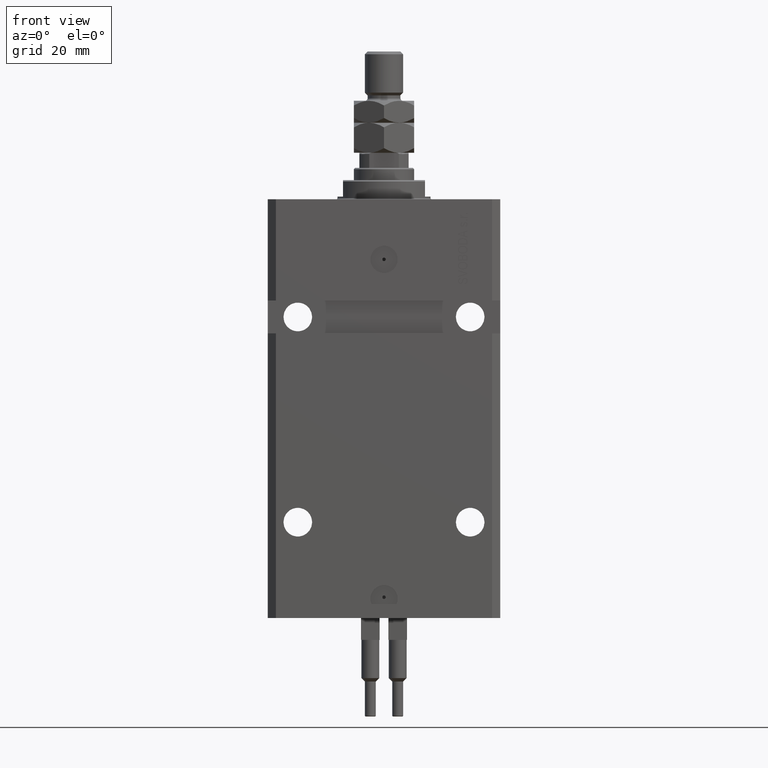
[diagram: clean part render]
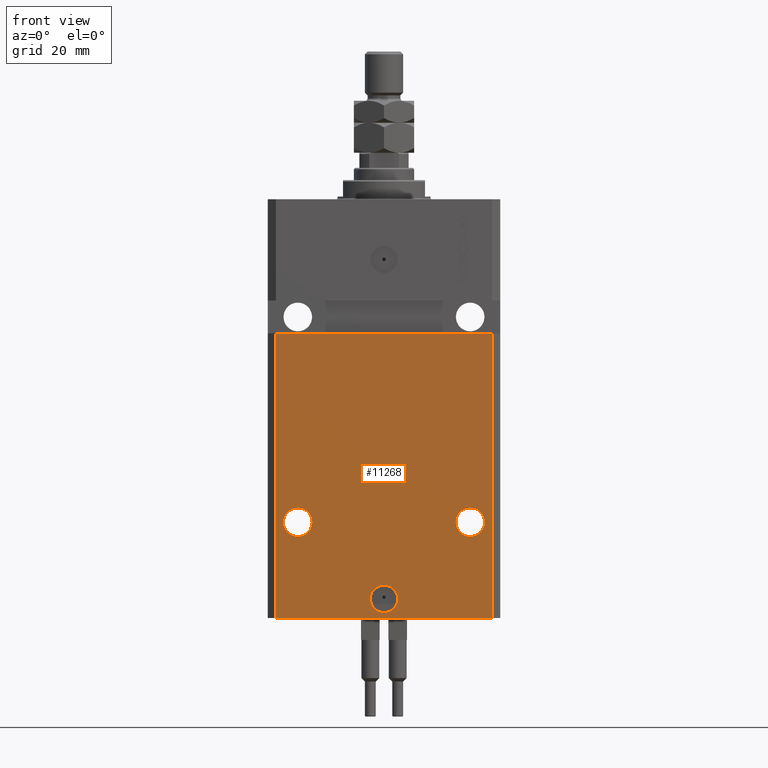
[diagram: same view with one face highlighted and labeled with its STEP entity id]
A machine part, front view. The second image highlights one B-rep face of the part: STEP entity #11268.
In plain terms, the highlighted planar face has unit normal (0, -1, 0).
Its self-contained STEP definition (entity closure, byte-faithful):
#277 = AXIS2_PLACEMENT_3D ( 'NONE', #7714, #47467, #39720 ) ;
#502 = EDGE_CURVE ( 'NONE', #27278, #9931, #25918, .T. ) ;
#1090 = DIRECTION ( 'NONE',  ( 0.000000000000000000, -0.000000000000000000, -1.000000000000000000 ) ) ;
#1821 = EDGE_LOOP ( 'NONE', ( #11480, #30731 ) ) ;
#2847 = AXIS2_PLACEMENT_3D ( 'NONE', #43783, #46654, #3786 ) ;
#3786 = DIRECTION ( 'NONE',  ( 1.000000000000000000, 0.000000000000000000, 0.000000000000000000 ) ) ;
#3959 = FACE_OUTER_BOUND ( 'NONE', #5449, .T. ) ;
#4210 = FACE_BOUND ( 'NONE', #30906, .T. ) ;
#4339 = DIRECTION ( 'NONE',  ( 1.000000000000000000, 0.000000000000000000, 0.000000000000000000 ) ) ;
#4598 = CARTESIAN_POINT ( 'NONE',  ( 31.50000000000001421, -31.49999999999999289, -118.0000000000000000 ) ) ;
#4717 = PLANE ( 'NONE',  #22229 ) ;
#5248 = VECTOR ( 'NONE', #42848, 1000.000000000000000 ) ;
#5449 = EDGE_LOOP ( 'NONE', ( #48148, #45606, #25370, #23076 ) ) ;
#6507 = CARTESIAN_POINT ( 'NONE',  ( -39.50000000000000000, -31.50000000000000711, -48.99999999999999289 ) ) ;
#7212 = EDGE_CURVE ( 'NONE', #35323, #45202, #26032, .T. ) ;
#7714 = CARTESIAN_POINT ( 'NONE',  ( 0.000000000000000000, -31.50000000000000000, -146.0000000000000000 ) ) ;
#7910 = VERTEX_POINT ( 'NONE', #39578 ) ;
#8249 = DIRECTION ( 'NONE',  ( 1.000000000000000000, 0.000000000000000000, 0.000000000000000000 ) ) ;
#8295 = CARTESIAN_POINT ( 'NONE',  ( -39.50000000000000711, -31.50000000000000000, -153.0000000000000000 ) ) ;
#9904 = CIRCLE ( 'NONE', #27226, 5.249999999999997335 ) ;
#9931 = VERTEX_POINT ( 'NONE', #21014 ) ;
#11268 = ADVANCED_FACE ( 'NONE', ( #20712, #4210, #11964, #3959 ), #4717, .T. ) ;
#11480 = ORIENTED_EDGE ( 'NONE', *, *, #39211, .F. ) ;
#11964 = FACE_BOUND ( 'NONE', #1821, .T. ) ;
#12707 = CIRCLE ( 'NONE', #2847, 5.249999999999997335 ) ;
#13675 = DIRECTION ( 'NONE',  ( 0.000000000000000000, 0.000000000000000000, 1.000000000000000000 ) ) ;
#13724 = CARTESIAN_POINT ( 'NONE',  ( 39.50000000000000711, -31.50000000000000000, -153.0000000000000000 ) ) ;
#14074 = CARTESIAN_POINT ( 'NONE',  ( -5.000000000000006217, -31.50000000000000000, -146.0000000000000000 ) ) ;
#14799 = LINE ( 'NONE', #34400, #19306 ) ;
#15838 = CARTESIAN_POINT ( 'NONE',  ( -39.50000000000000711, -31.50000000000000000, -153.0000000000000000 ) ) ;
#17536 = LINE ( 'NONE', #45152, #21274 ) ;
#19220 = VERTEX_POINT ( 'NONE', #48652 ) ;
#19306 = VECTOR ( 'NONE', #37780, 1000.000000000000000 ) ;
#20712 = FACE_BOUND ( 'NONE', #21586, .T. ) ;
#21014 = CARTESIAN_POINT ( 'NONE',  ( 5.000000000000006217, -31.50000000000000000, -146.0000000000000000 ) ) ;
#21101 = ORIENTED_EDGE ( 'NONE', *, *, #23387, .F. ) ;
#21274 = VECTOR ( 'NONE', #13675, 1000.000000000000000 ) ;
#21586 = EDGE_LOOP ( 'NONE', ( #36480, #27911 ) ) ;
#21975 = EDGE_CURVE ( 'NONE', #40999, #27099, #22725, .T. ) ;
#22229 = AXIS2_PLACEMENT_3D ( 'NONE', #15838, #32328, #1090 ) ;
#22542 = CIRCLE ( 'NONE', #277, 5.000000000000006217 ) ;
#22725 = LINE ( 'NONE', #38482, #5248 ) ;
#23076 = ORIENTED_EDGE ( 'NONE', *, *, #21975, .T. ) ;
#23387 = EDGE_CURVE ( 'NONE', #19220, #50556, #12707, .T. ) ;
#23894 = DIRECTION ( 'NONE',  ( 1.176083712526788232E-16, -1.000000000000000000, 0.000000000000000000 ) ) ;
#24302 = AXIS2_PLACEMENT_3D ( 'NONE', #31491, #47750, #8249 ) ;
#25370 = ORIENTED_EDGE ( 'NONE', *, *, #40875, .T. ) ;
#25918 = CIRCLE ( 'NONE', #24302, 5.000000000000006217 ) ;
#26032 = CIRCLE ( 'NONE', #28496, 5.249999999999997335 ) ;
#27099 = VERTEX_POINT ( 'NONE', #48399 ) ;
#27226 = AXIS2_PLACEMENT_3D ( 'NONE', #43515, #23894, #31891 ) ;
#27278 = VERTEX_POINT ( 'NONE', #14074 ) ;
#27512 = VERTEX_POINT ( 'NONE', #6507 ) ;
#27911 = ORIENTED_EDGE ( 'NONE', *, *, #502, .F. ) ;
#27918 = LINE ( 'NONE', #8295, #41306 ) ;
#28496 = AXIS2_PLACEMENT_3D ( 'NONE', #42627, #34615, #50609 ) ;
#30731 = ORIENTED_EDGE ( 'NONE', *, *, #7212, .F. ) ;
#30906 = EDGE_LOOP ( 'NONE', ( #48554, #21101 ) ) ;
#31180 = EDGE_CURVE ( 'NONE', #50556, #19220, #36904, .T. ) ;
#31491 = CARTESIAN_POINT ( 'NONE',  ( 0.000000000000000000, -31.50000000000000000, -146.0000000000000000 ) ) ;
#31786 = EDGE_CURVE ( 'NONE', #7910, #27512, #17536, .T. ) ;
#31891 = DIRECTION ( 'NONE',  ( -1.000000000000000000, 0.000000000000000000, 0.000000000000000000 ) ) ;
#32298 = DIRECTION ( 'NONE',  ( 1.000000000000000000, 0.000000000000000000, 0.000000000000000000 ) ) ;
#32328 = DIRECTION ( 'NONE',  ( 0.000000000000000000, -1.000000000000000000, 0.000000000000000000 ) ) ;
#34400 = CARTESIAN_POINT ( 'NONE',  ( -42.50000000000001421, -31.50000000000000711, -48.99999999999999289 ) ) ;
#34615 = DIRECTION ( 'NONE',  ( 1.176083712526788232E-16, -1.000000000000000000, 0.000000000000000000 ) ) ;
#35323 = VERTEX_POINT ( 'NONE', #46557 ) ;
#36480 = ORIENTED_EDGE ( 'NONE', *, *, #46297, .F. ) ;
#36596 = CARTESIAN_POINT ( 'NONE',  ( -26.25000000000001776, -31.50000000000000711, -118.0000000000000000 ) ) ;
#36904 = CIRCLE ( 'NONE', #44319, 5.249999999999997335 ) ;
#37780 = DIRECTION ( 'NONE',  ( 1.000000000000000000, 1.632680918566406054E-16, 1.632680918566406054E-16 ) ) ;
#38482 = CARTESIAN_POINT ( 'NONE',  ( 39.50000000000000711, -31.50000000000000000, -153.0000000000000000 ) ) ;
#39199 = CARTESIAN_POINT ( 'NONE',  ( 36.75000000000001421, -31.49999999999999289, -118.0000000000000000 ) ) ;
#39211 = EDGE_CURVE ( 'NONE', #45202, #35323, #9904, .T. ) ;
#39578 = CARTESIAN_POINT ( 'NONE',  ( -39.50000000000000711, -31.50000000000000000, -153.0000000000000000 ) ) ;
#39705 = DIRECTION ( 'NONE',  ( 1.176083712526788232E-16, -1.000000000000000000, 0.000000000000000000 ) ) ;
#39720 = DIRECTION ( 'NONE',  ( 1.000000000000000000, 0.000000000000000000, 0.000000000000000000 ) ) ;
#40875 = EDGE_CURVE ( 'NONE', #7910, #40999, #27918, .T. ) ;
#40999 = VERTEX_POINT ( 'NONE', #13724 ) ;
#41306 = VECTOR ( 'NONE', #32298, 1000.000000000000000 ) ;
#42627 = CARTESIAN_POINT ( 'NONE',  ( -31.50000000000001421, -31.50000000000000711, -118.0000000000000000 ) ) ;
#42848 = DIRECTION ( 'NONE',  ( 0.000000000000000000, 0.000000000000000000, 1.000000000000000000 ) ) ;
#43515 = CARTESIAN_POINT ( 'NONE',  ( -31.50000000000001421, -31.50000000000000711, -118.0000000000000000 ) ) ;
#43783 = CARTESIAN_POINT ( 'NONE',  ( 31.50000000000001421, -31.49999999999999289, -118.0000000000000000 ) ) ;
#44319 = AXIS2_PLACEMENT_3D ( 'NONE', #4598, #39705, #4339 ) ;
#45152 = CARTESIAN_POINT ( 'NONE',  ( -39.50000000000000711, -31.50000000000000000, -153.0000000000000000 ) ) ;
#45202 = VERTEX_POINT ( 'NONE', #36596 ) ;
#45606 = ORIENTED_EDGE ( 'NONE', *, *, #31786, .F. ) ;
#46297 = EDGE_CURVE ( 'NONE', #9931, #27278, #22542, .T. ) ;
#46557 = CARTESIAN_POINT ( 'NONE',  ( -36.75000000000001421, -31.50000000000000711, -118.0000000000000000 ) ) ;
#46654 = DIRECTION ( 'NONE',  ( 1.176083712526788232E-16, -1.000000000000000000, 0.000000000000000000 ) ) ;
#47322 = EDGE_CURVE ( 'NONE', #27512, #27099, #14799, .T. ) ;
#47467 = DIRECTION ( 'NONE',  ( 1.176083712526788232E-16, -1.000000000000000000, 0.000000000000000000 ) ) ;
#47750 = DIRECTION ( 'NONE',  ( 1.176083712526788232E-16, -1.000000000000000000, 0.000000000000000000 ) ) ;
#48148 = ORIENTED_EDGE ( 'NONE', *, *, #47322, .F. ) ;
#48399 = CARTESIAN_POINT ( 'NONE',  ( 39.50000000000000000, -31.49999999999999289, -48.99999999999997868 ) ) ;
#48554 = ORIENTED_EDGE ( 'NONE', *, *, #31180, .F. ) ;
#48652 = CARTESIAN_POINT ( 'NONE',  ( 26.25000000000001776, -31.49999999999999289, -118.0000000000000000 ) ) ;
#50556 = VERTEX_POINT ( 'NONE', #39199 ) ;
#50609 = DIRECTION ( 'NONE',  ( -1.000000000000000000, 0.000000000000000000, 0.000000000000000000 ) ) ;